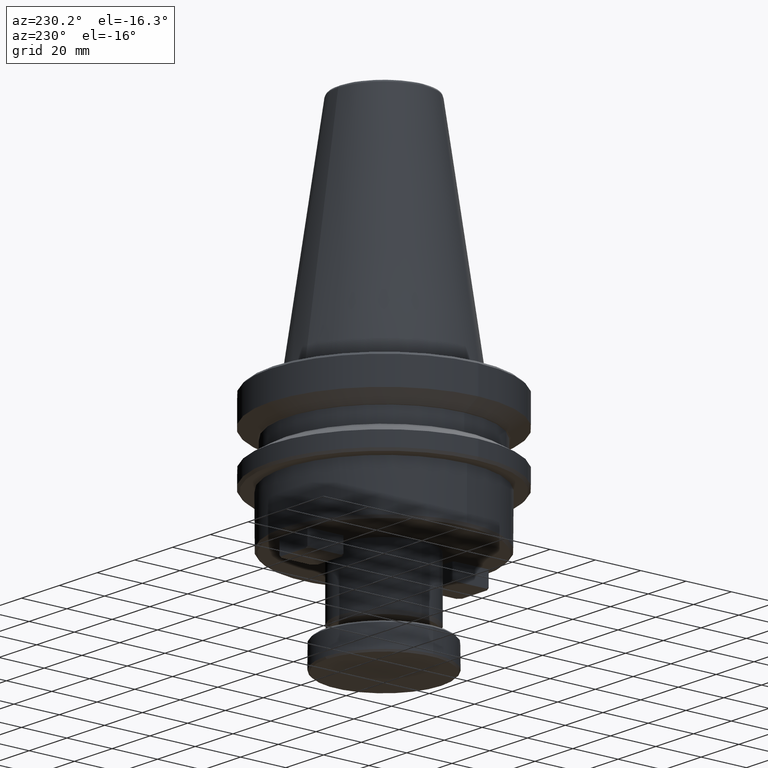
[diagram: clean part render]
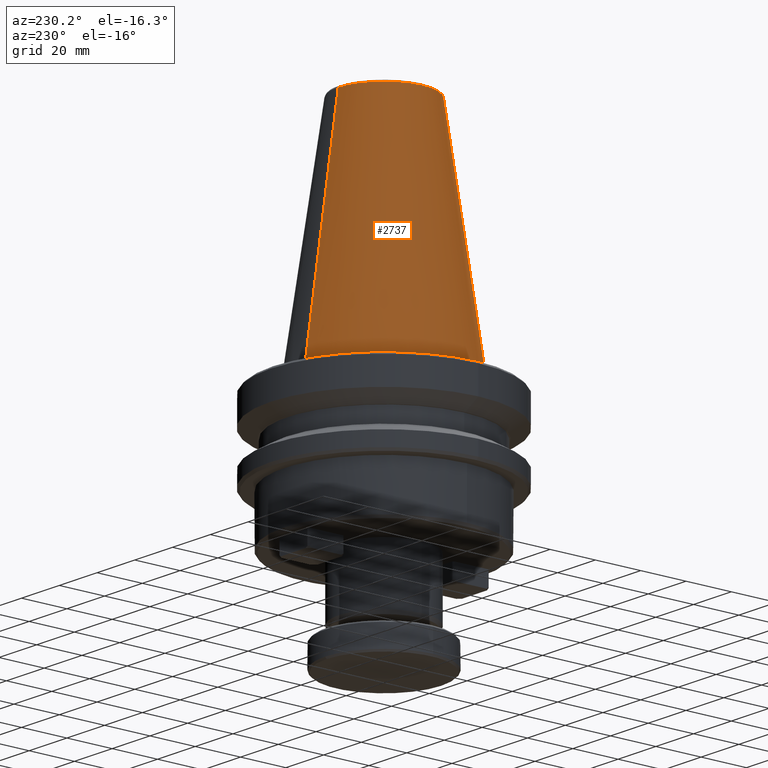
[diagram: same view with one face highlighted and labeled with its STEP entity id]
A machine part, auxiliary view. The second image highlights one B-rep face of the part: STEP entity #2737.
In plain terms, the highlighted conical surface has half-angle 8.297 deg.
Its self-contained STEP definition (entity closure, byte-faithful):
#1 = ORIENTED_EDGE ( 'NONE', *, *, #769, .T. ) ;
#56 = DIRECTION ( 'NONE',  ( -1.000000000000000000, 0.0000000000000000000, -3.611427007686981100E-016 ) ) ;
#57 = DIRECTION ( 'NONE',  ( -0.0000000000000000000, -0.0000000000000000000, 1.000000000000000000 ) ) ;
#59 = CARTESIAN_POINT ( 'NONE',  ( 0.0000000000000000000, 0.0000000000000000000, 0.0000000000000000000 ) ) ;
#82 = ORIENTED_EDGE ( 'NONE', *, *, #2373, .T. ) ;
#98 = EDGE_LOOP ( 'NONE', ( #212, #267, #82, #1, #1063, #2074 ) ) ;
#151 = DIRECTION ( 'NONE',  ( 1.767266086135278000E-017, -0.1443082272673000500, -0.9895327864921754600 ) ) ;
#170 = LINE ( 'NONE', #175, #2474 ) ;
#175 = CARTESIAN_POINT ( 'NONE',  ( 4.277078946022130900E-015, -34.92499999999999700, -1.235024670767087800E-014 ) ) ;
#212 = ORIENTED_EDGE ( 'NONE', *, *, #1239, .F. ) ;
#215 = AXIS2_PLACEMENT_3D ( 'NONE', #59, #57, #56 ) ;
#251 = EDGE_CURVE ( 'NONE', #1556, #800, #1825, .T. ) ;
#267 = ORIENTED_EDGE ( 'NONE', *, *, #1925, .T. ) ;
#289 = AXIS2_PLACEMENT_3D ( 'NONE', #2141, #2495, #2706 ) ;
#411 = VERTEX_POINT ( 'NONE', #941 ) ;
#498 = CIRCLE ( 'NONE', #1901, 20.20381605152244500 ) ;
#505 = LINE ( 'NONE', #643, #2763 ) ;
#543 = VERTEX_POINT ( 'NONE', #806 ) ;
#599 = CARTESIAN_POINT ( 'NONE',  ( -34.92499999999999700, 4.277078946022130900E-015, 0.0000000000000000000 ) ) ;
#617 = DIRECTION ( 'NONE',  ( 0.0000000000000000000, 0.1443082272673000500, -0.9895327864921754600 ) ) ;
#620 = AXIS2_PLACEMENT_3D ( 'NONE', #1050, #1048, #1046 ) ;
#643 = CARTESIAN_POINT ( 'NONE',  ( 0.0000000000000000000, 34.92499999999999700, -1.235024670767087400E-014 ) ) ;
#658 = CARTESIAN_POINT ( 'NONE',  ( 0.0000000000000000000, 20.20381605152244500, 100.9443082272672700 ) ) ;
#760 = VERTEX_POINT ( 'NONE', #658 ) ;
#769 = EDGE_CURVE ( 'NONE', #760, #1556, #505, .T. ) ;
#799 = CONICAL_SURFACE ( 'NONE', #1490, 34.92499999999999700, 0.1448138465474120300 ) ;
#800 = VERTEX_POINT ( 'NONE', #599 ) ;
#806 = CARTESIAN_POINT ( 'NONE',  ( -20.20381605152244500, 2.474253865805887700E-015, 100.9443082272672700 ) ) ;
#929 = CARTESIAN_POINT ( 'NONE',  ( 0.0000000000000000000, 0.0000000000000000000, -1.235024670767087600E-014 ) ) ;
#941 = CARTESIAN_POINT ( 'NONE',  ( 4.277078946022130900E-015, -34.92499999999999700, 0.0000000000000000000 ) ) ;
#966 = DIRECTION ( 'NONE',  ( 0.0000000000000000000, 1.000000000000000000, 4.411578970679424000E-032 ) ) ;
#973 = DIRECTION ( 'NONE',  ( 0.0000000000000000000, 2.205789485339712300E-032, -1.000000000000000000 ) ) ;
#1046 = DIRECTION ( 'NONE',  ( -1.000000000000000000, -8.881784197001252300E-016, -3.611427007686981100E-016 ) ) ;
#1048 = DIRECTION ( 'NONE',  ( -0.0000000000000000000, -0.0000000000000000000, 1.000000000000000000 ) ) ;
#1050 = CARTESIAN_POINT ( 'NONE',  ( 0.0000000000000000000, 0.0000000000000000000, 0.0000000000000000000 ) ) ;
#1063 = ORIENTED_EDGE ( 'NONE', *, *, #251, .T. ) ;
#1192 = DIRECTION ( 'NONE',  ( -1.000000000000000000, 0.0000000000000000000, 0.0000000000000000000 ) ) ;
#1197 = DIRECTION ( 'NONE',  ( 0.0000000000000000000, 0.0000000000000000000, -1.000000000000000000 ) ) ;
#1198 = CARTESIAN_POINT ( 'NONE',  ( 0.0000000000000000000, 0.0000000000000000000, 100.9443082272672700 ) ) ;
#1239 = EDGE_CURVE ( 'NONE', #1909, #411, #170, .T. ) ;
#1329 = EDGE_CURVE ( 'NONE', #800, #411, #1697, .T. ) ;
#1490 = AXIS2_PLACEMENT_3D ( 'NONE', #929, #973, #966 ) ;
#1556 = VERTEX_POINT ( 'NONE', #1681 ) ;
#1681 = CARTESIAN_POINT ( 'NONE',  ( 0.0000000000000000000, 34.92499999999999700, 0.0000000000000000000 ) ) ;
#1697 = CIRCLE ( 'NONE', #215, 34.92499999999999700 ) ;
#1825 = CIRCLE ( 'NONE', #620, 34.92499999999999700 ) ;
#1901 = AXIS2_PLACEMENT_3D ( 'NONE', #1198, #1197, #1192 ) ;
#1909 = VERTEX_POINT ( 'NONE', #2047 ) ;
#1925 = EDGE_CURVE ( 'NONE', #1909, #543, #2766, .T. ) ;
#2047 = CARTESIAN_POINT ( 'NONE',  ( 3.375666405914009500E-015, -20.20381605152244500, 100.9443082272672700 ) ) ;
#2074 = ORIENTED_EDGE ( 'NONE', *, *, #1329, .T. ) ;
#2141 = CARTESIAN_POINT ( 'NONE',  ( 0.0000000000000000000, 0.0000000000000000000, 100.9443082272672700 ) ) ;
#2373 = EDGE_CURVE ( 'NONE', #543, #760, #498, .T. ) ;
#2474 = VECTOR ( 'NONE', #151, 1000.000000000000000 ) ;
#2495 = DIRECTION ( 'NONE',  ( 0.0000000000000000000, 0.0000000000000000000, -1.000000000000000000 ) ) ;
#2660 = FACE_OUTER_BOUND ( 'NONE', #98, .T. ) ;
#2706 = DIRECTION ( 'NONE',  ( -1.000000000000000000, 0.0000000000000000000, 0.0000000000000000000 ) ) ;
#2737 = ADVANCED_FACE ( 'NONE', ( #2660 ), #799, .T. ) ;
#2763 = VECTOR ( 'NONE', #617, 1000.000000000000000 ) ;
#2766 = CIRCLE ( 'NONE', #289, 20.20381605152244500 ) ;